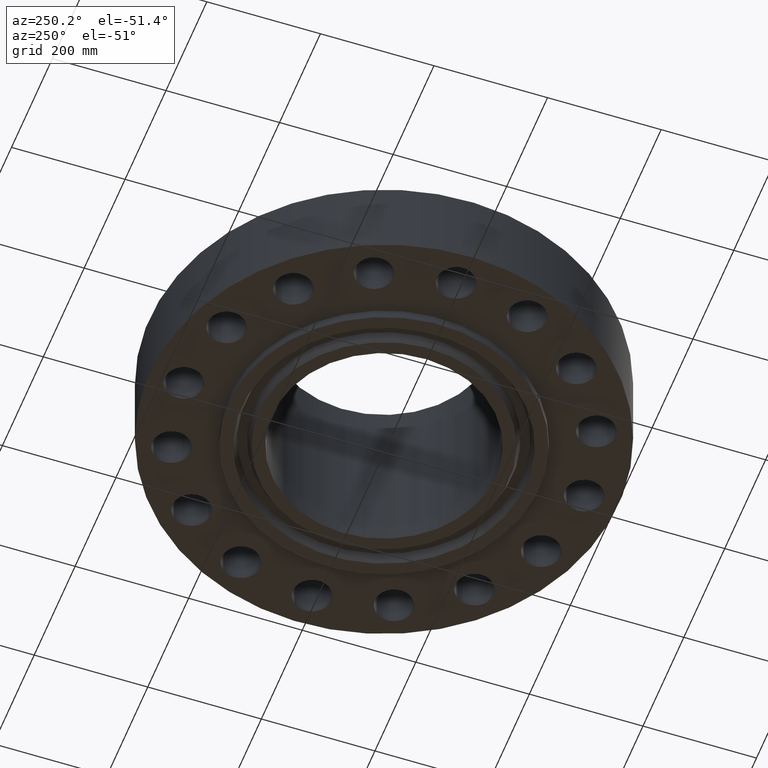
[diagram: clean part render]
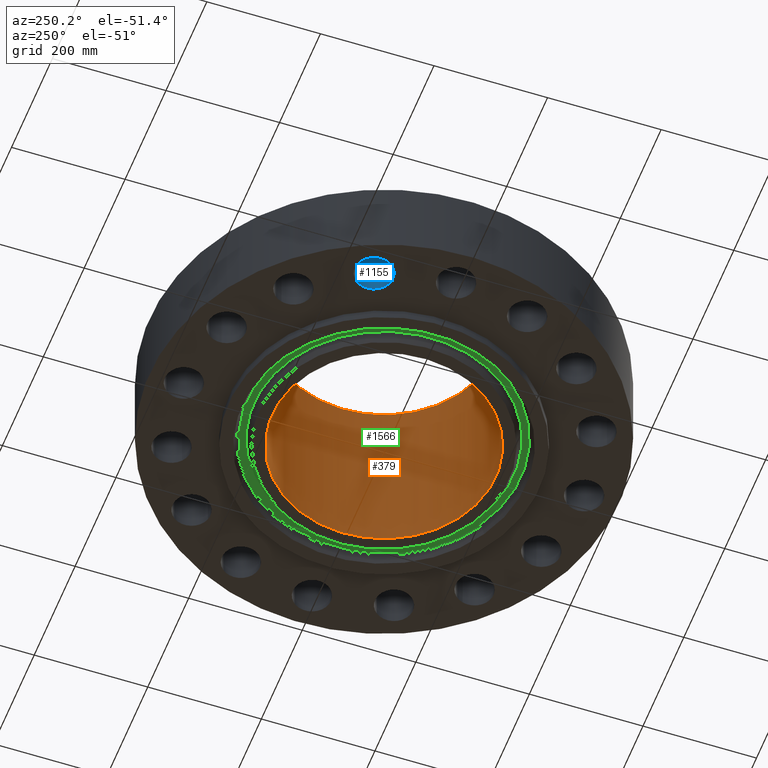
[diagram: same view with three faces highlighted in distinct colors, each labeled with its STEP entity id]
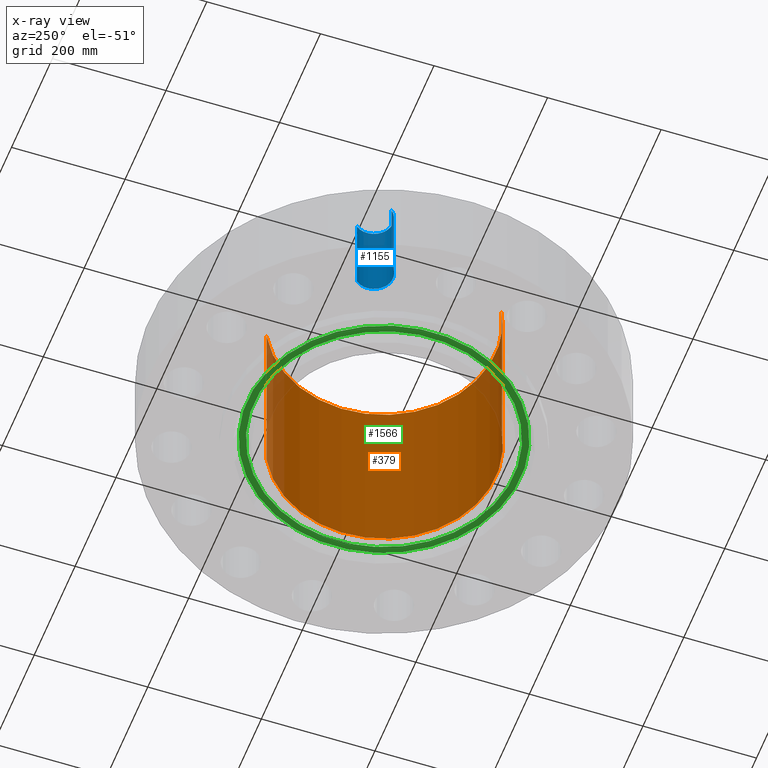
[diagram: x-ray of the same camera — body ghosted, the three highlighted faces saturated]
A machine part, auxiliary view with three faces highlighted in distinct colors.
The next image is the same camera in x-ray (body ghosted, the three faces saturated) — at least one of them is partly hidden behind the body in this view.
Their STEP definitions:

[orange] entity #379 — the highlighted cylindrical surface (partial cylindrical patch) has radius 196.85 mm, axis along (0, 0, -1).
#343=AXIS2_PLACEMENT_3D('Cylinder Axis2P3D',#340,#341,#342) ;
#347=AXIS2_PLACEMENT_3D('Circle Axis2P3D',#345,#346,$) ;
#363=AXIS2_PLACEMENT_3D('Circle Axis2P3D',#361,#362,$) ;
#340=CARTESIAN_POINT('Axis2P3D Location',(0.,0.,5.78100000002)) ;
#345=CARTESIAN_POINT('Axis2P3D Location',(0.,0.,12.25)) ;
#349=CARTESIAN_POINT('Vertex',(3.7155479242,6.80126485468,12.25)) ;
#351=CARTESIAN_POINT('Vertex',(-3.7155479242,-6.80126485468,12.25)) ;
#354=CARTESIAN_POINT('Line Origine',(3.7155479242,6.80126485468,5.78100000002)) ;
#358=CARTESIAN_POINT('Vertex',(3.7155479242,6.80126485468,-0.688000000003)) ;
#361=CARTESIAN_POINT('Axis2P3D Location',(0.,0.,-0.688000000003)) ;
#365=CARTESIAN_POINT('Vertex',(-3.7155479242,-6.80126485468,-0.688000000003)) ;
#368=CARTESIAN_POINT('Line Origine',(-3.7155479242,-6.80126485468,5.78100000002)) ;
#341=DIRECTION('Axis2P3D Direction',(0.,0.,-0.0393700787402)) ;
#342=DIRECTION('Axis2P3D XDirection',(-0.0188750212049,-0.0345504945626,0.)) ;
#346=DIRECTION('Axis2P3D Direction',(0.,0.,-0.0393700787402)) ;
#355=DIRECTION('Vector Direction',(0.,0.,-0.0393700787402)) ;
#362=DIRECTION('Axis2P3D Direction',(0.,0.,-0.0393700787402)) ;
#369=DIRECTION('Vector Direction',(0.,0.,-0.0393700787402)) ;
#356=VECTOR('Line Direction',#355,0.0393700787402) ;
#370=VECTOR('Line Direction',#369,0.0393700787402) ;
#374=ORIENTED_EDGE('',*,*,#353,.F.) ;
#375=ORIENTED_EDGE('',*,*,#360,.T.) ;
#376=ORIENTED_EDGE('',*,*,#367,.T.) ;
#377=ORIENTED_EDGE('',*,*,#372,.F.) ;
#379=ADVANCED_FACE('PartBody',(#378),#344,.F.) ;
#348=CIRCLE('generated circle',#347,7.75000000003) ;
#364=CIRCLE('generated circle',#363,7.75000000003) ;
#344=CYLINDRICAL_SURFACE('generated cylinder',#343,7.75000000003) ;
#353=EDGE_CURVE('',#350,#352,#348,.T.) ;
#360=EDGE_CURVE('',#350,#359,#357,.T.) ;
#367=EDGE_CURVE('',#359,#366,#364,.T.) ;
#372=EDGE_CURVE('',#352,#366,#371,.T.) ;
#373=EDGE_LOOP('',(#374,#375,#376,#377)) ;
#378=FACE_OUTER_BOUND('',#373,.T.) ;
#357=LINE('Line',#354,#356) ;
#371=LINE('Line',#368,#370) ;
#350=VERTEX_POINT('',#349) ;
#352=VERTEX_POINT('',#351) ;
#359=VERTEX_POINT('',#358) ;
#366=VERTEX_POINT('',#365) ;

[blue] entity #1155 — the highlighted cylindrical surface (edge-blend (fillet) strip) has radius 33.401 mm, axis along (0, 0, -1).
#725=AXIS2_PLACEMENT_3D('Circle Axis2P3D',#723,#724,$) ;
#1116=AXIS2_PLACEMENT_3D('Cylinder Axis2P3D',#1113,#1114,#1115) ;
#1146=AXIS2_PLACEMENT_3D('Circle Axis2P3D',#1144,#1145,$) ;
#718=CARTESIAN_POINT('Vertex',(-13.8429081042,4.48481687549,0.)) ;
#720=CARTESIAN_POINT('Vertex',(-11.7947489231,6.13464837268,-4.47585975282E-015)) ;
#723=CARTESIAN_POINT('Axis2P3D Location',(-12.8188285136,5.30973262409,0.)) ;
#1113=CARTESIAN_POINT('Axis2P3D Location',(-12.8188285136,5.30973262409,5.74606299215)) ;
#1118=CARTESIAN_POINT('Line Origine',(-13.8429081042,4.48481687549,2.87500000001)) ;
#1122=CARTESIAN_POINT('Vertex',(-13.8429081042,4.48481687549,5.75000000002)) ;
#1125=CARTESIAN_POINT('Line Origine',(-11.7947489231,6.13464837268,2.87500000001)) ;
#1129=CARTESIAN_POINT('Vertex',(-11.7947489231,6.13464837268,5.75000000002)) ;
#1144=CARTESIAN_POINT('Axis2P3D Location',(-12.8188285136,5.30973262409,5.75000000002)) ;
#724=DIRECTION('Axis2P3D Direction',(0.,0.,-0.0393700787402)) ;
#1114=DIRECTION('Axis2P3D Direction',(0.,0.,-0.0393700787402)) ;
#1115=DIRECTION('Axis2P3D XDirection',(0.030660147616,0.0246973368639,0.)) ;
#1119=DIRECTION('Vector Direction',(0.,0.,-0.0393700787402)) ;
#1126=DIRECTION('Vector Direction',(0.,0.,-0.0393700787402)) ;
#1145=DIRECTION('Axis2P3D Direction',(0.,0.,-0.0393700787402)) ;
#1120=VECTOR('Line Direction',#1119,0.0393700787402) ;
#1127=VECTOR('Line Direction',#1126,0.0393700787402) ;
#1150=ORIENTED_EDGE('',*,*,#1131,.F.) ;
#1151=ORIENTED_EDGE('',*,*,#727,.T.) ;
#1152=ORIENTED_EDGE('',*,*,#1124,.T.) ;
#1153=ORIENTED_EDGE('',*,*,#1148,.F.) ;
#1155=ADVANCED_FACE('PartBody',(#1154),#1117,.F.) ;
#726=CIRCLE('generated circle',#725,1.31500000001) ;
#1147=CIRCLE('generated circle',#1146,1.31500000001) ;
#1117=CYLINDRICAL_SURFACE('generated cylinder',#1116,1.31500000001) ;
#727=EDGE_CURVE('',#721,#719,#726,.T.) ;
#1124=EDGE_CURVE('',#719,#1123,#1121,.F.) ;
#1131=EDGE_CURVE('',#721,#1130,#1128,.F.) ;
#1148=EDGE_CURVE('',#1130,#1123,#1147,.T.) ;
#1149=EDGE_LOOP('',(#1150,#1151,#1152,#1153)) ;
#1154=FACE_OUTER_BOUND('',#1149,.T.) ;
#1121=LINE('Line',#1118,#1120) ;
#1128=LINE('Line',#1125,#1127) ;
#719=VERTEX_POINT('',#718) ;
#721=VERTEX_POINT('',#720) ;
#1123=VERTEX_POINT('',#1122) ;
#1130=VERTEX_POINT('',#1129) ;

[green] entity #1566 — the highlighted planar face has unit normal (0, 0, -1).
#484=AXIS2_PLACEMENT_3D('Plane Axis2P3D',#481,#482,#483) ;
#1488=AXIS2_PLACEMENT_3D('Circle Axis2P3D',#1486,#1487,$) ;
#1534=AXIS2_PLACEMENT_3D('Circle Axis2P3D',#1532,#1533,$) ;
#1550=AXIS2_PLACEMENT_3D('Circle Axis2P3D',#1548,#1549,$) ;
#1559=AXIS2_PLACEMENT_3D('Circle Axis2P3D',#1557,#1558,$) ;
#481=CARTESIAN_POINT('Axis2P3D Location',(0.,10.75,0.)) ;
#1483=CARTESIAN_POINT('Vertex',(-4.54962566856,8.32803392469,-6.99353086378E-016)) ;
#1486=CARTESIAN_POINT('Axis2P3D Location',(0.,0.,-6.99353086378E-016)) ;
#1490=CARTESIAN_POINT('Vertex',(4.54962566856,-8.32803392469,-6.99353086378E-016)) ;
#1532=CARTESIAN_POINT('Axis2P3D Location',(0.,0.,-6.99353086378E-016)) ;
#1548=CARTESIAN_POINT('Axis2P3D Location',(0.,0.,0.)) ;
#1552=CARTESIAN_POINT('Vertex',(4.31974679565,-7.90724347035,4.54579506146E-016)) ;
#1554=CARTESIAN_POINT('Vertex',(-4.31974679565,7.90724347035,4.54579506146E-016)) ;
#1557=CARTESIAN_POINT('Axis2P3D Location',(0.,0.,0.)) ;
#482=DIRECTION('Axis2P3D Direction',(0.,0.,-0.0393700787402)) ;
#483=DIRECTION('Axis2P3D XDirection',(0.0393700787402,0.,0.)) ;
#1487=DIRECTION('Axis2P3D Direction',(0.,0.,0.0393700787402)) ;
#1533=DIRECTION('Axis2P3D Direction',(0.,0.,0.0393700787402)) ;
#1549=DIRECTION('Axis2P3D Direction',(0.,0.,-0.0393700787402)) ;
#1558=DIRECTION('Axis2P3D Direction',(0.,0.,-0.0393700787402)) ;
#1545=ORIENTED_EDGE('',*,*,#1492,.F.) ;
#1546=ORIENTED_EDGE('',*,*,#1536,.F.) ;
#1563=ORIENTED_EDGE('',*,*,#1556,.T.) ;
#1564=ORIENTED_EDGE('',*,*,#1561,.T.) ;
#1565=FACE_BOUND('',#1562,.T.) ;
#1566=ADVANCED_FACE('PartBody',(#1547,#1565),#485,.T.) ;
#1489=CIRCLE('generated circle',#1488,9.48974408373) ;
#1535=CIRCLE('generated circle',#1534,9.48974408373) ;
#1551=CIRCLE('generated circle',#1550,9.01025591634) ;
#1560=CIRCLE('generated circle',#1559,9.01025591634) ;
#1492=EDGE_CURVE('',#1484,#1491,#1489,.T.) ;
#1536=EDGE_CURVE('',#1491,#1484,#1535,.T.) ;
#1556=EDGE_CURVE('',#1553,#1555,#1551,.F.) ;
#1561=EDGE_CURVE('',#1555,#1553,#1560,.F.) ;
#1544=EDGE_LOOP('',(#1545,#1546)) ;
#1562=EDGE_LOOP('',(#1563,#1564)) ;
#1547=FACE_OUTER_BOUND('',#1544,.T.) ;
#485=PLANE('',#484) ;
#1484=VERTEX_POINT('',#1483) ;
#1491=VERTEX_POINT('',#1490) ;
#1553=VERTEX_POINT('',#1552) ;
#1555=VERTEX_POINT('',#1554) ;